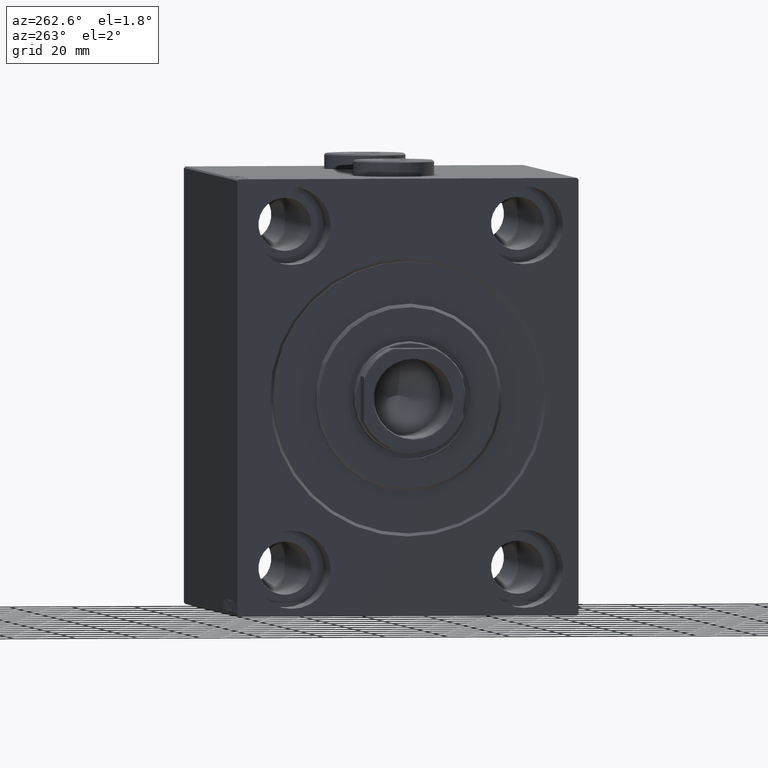
[diagram: clean part render]
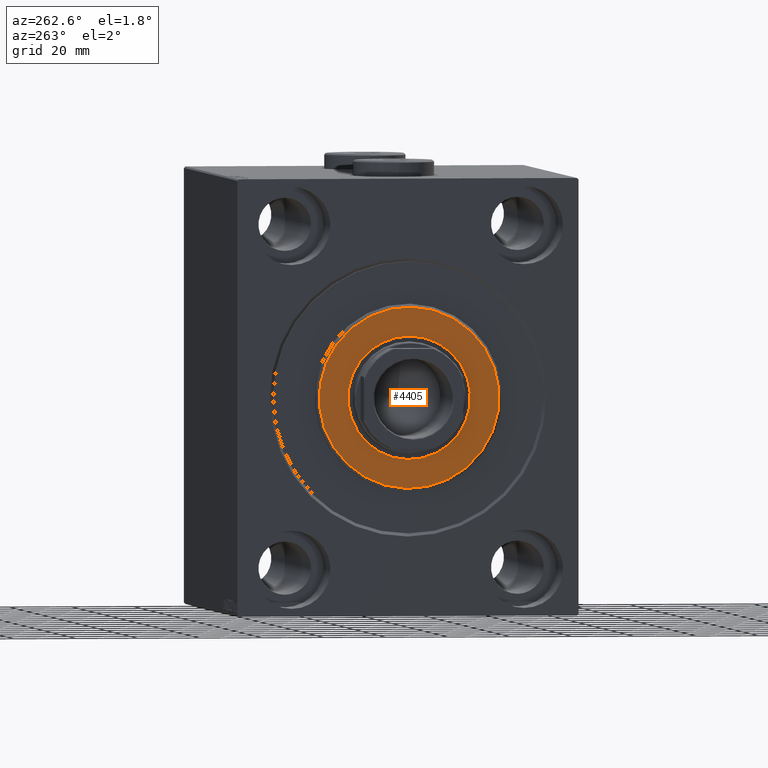
[diagram: same view with one face highlighted and labeled with its STEP entity id]
A machine part, auxiliary view. The second image highlights one B-rep face of the part: STEP entity #4405.
In plain terms, the highlighted planar face has unit normal (-1, 0, 0).
Its self-contained STEP definition (entity closure, byte-faithful):
#506 = DIRECTION ( 'NONE',  ( 1.000000000000000000, -0.000000000000000000, 0.000000000000000000 ) ) ;
#1405 = DIRECTION ( 'NONE',  ( -1.000000000000000000, 0.000000000000000000, -0.000000000000000000 ) ) ;
#1963 = ORIENTED_EDGE ( 'NONE', *, *, #6620, .T. ) ;
#2255 = CARTESIAN_POINT ( 'NONE',  ( 3.000000000000000000, 0.000000000000000000, 19.75000000000000000 ) ) ;
#2344 = CIRCLE ( 'NONE', #15497, 28.99999999999999289 ) ;
#2453 = FACE_BOUND ( 'NONE', #23117, .T. ) ;
#3785 = EDGE_CURVE ( 'NONE', #37875, #45302, #16118, .T. ) ;
#4405 = ADVANCED_FACE ( 'NONE', ( #6548, #2453 ), #40709, .T. ) ;
#6548 = FACE_OUTER_BOUND ( 'NONE', #21306, .T. ) ;
#6620 = EDGE_CURVE ( 'NONE', #45302, #37875, #6654, .T. ) ;
#6654 = CIRCLE ( 'NONE', #8850, 19.75000000000000000 ) ;
#8850 = AXIS2_PLACEMENT_3D ( 'NONE', #34620, #33968, #23889 ) ;
#9221 = EDGE_CURVE ( 'NONE', #27226, #36604, #2344, .T. ) ;
#10673 = CARTESIAN_POINT ( 'NONE',  ( 3.000000000000000000, 0.000000000000000000, 0.000000000000000000 ) ) ;
#11030 = CARTESIAN_POINT ( 'NONE',  ( 3.000000000000000000, 0.000000000000000000, 0.000000000000000000 ) ) ;
#13534 = ORIENTED_EDGE ( 'NONE', *, *, #9221, .T. ) ;
#14775 = CIRCLE ( 'NONE', #35267, 28.99999999999999289 ) ;
#15382 = ORIENTED_EDGE ( 'NONE', *, *, #37633, .T. ) ;
#15497 = AXIS2_PLACEMENT_3D ( 'NONE', #31671, #506, #17925 ) ;
#16118 = CIRCLE ( 'NONE', #27083, 19.75000000000000000 ) ;
#16320 = CARTESIAN_POINT ( 'NONE',  ( 3.000000000000000000, 0.000000000000000000, 28.99999999999999289 ) ) ;
#17925 = DIRECTION ( 'NONE',  ( 0.000000000000000000, 0.000000000000000000, -1.000000000000000000 ) ) ;
#21306 = EDGE_LOOP ( 'NONE', ( #13534, #15382 ) ) ;
#23117 = EDGE_LOOP ( 'NONE', ( #1963, #35875 ) ) ;
#23312 = DIRECTION ( 'NONE',  ( 0.000000000000000000, 0.000000000000000000, -1.000000000000000000 ) ) ;
#23772 = DIRECTION ( 'NONE',  ( 1.000000000000000000, -0.000000000000000000, 0.000000000000000000 ) ) ;
#23889 = DIRECTION ( 'NONE',  ( 0.000000000000000000, 0.000000000000000000, -1.000000000000000000 ) ) ;
#24208 = DIRECTION ( 'NONE',  ( 1.000000000000000000, -0.000000000000000000, 0.000000000000000000 ) ) ;
#24436 = DIRECTION ( 'NONE',  ( 0.000000000000000000, 0.000000000000000000, -1.000000000000000000 ) ) ;
#26281 = CARTESIAN_POINT ( 'NONE',  ( 3.000000000000000000, 3.612708057484691604E-15, -28.99999999999999289 ) ) ;
#27083 = AXIS2_PLACEMENT_3D ( 'NONE', #11030, #1405, #42422 ) ;
#27226 = VERTEX_POINT ( 'NONE', #16320 ) ;
#31671 = CARTESIAN_POINT ( 'NONE',  ( 3.000000000000000000, 0.000000000000000000, 0.000000000000000000 ) ) ;
#33968 = DIRECTION ( 'NONE',  ( -1.000000000000000000, 0.000000000000000000, -0.000000000000000000 ) ) ;
#34620 = CARTESIAN_POINT ( 'NONE',  ( 3.000000000000000000, 0.000000000000000000, 0.000000000000000000 ) ) ;
#35267 = AXIS2_PLACEMENT_3D ( 'NONE', #10673, #24208, #24436 ) ;
#35875 = ORIENTED_EDGE ( 'NONE', *, *, #3785, .T. ) ;
#36604 = VERTEX_POINT ( 'NONE', #26281 ) ;
#37633 = EDGE_CURVE ( 'NONE', #36604, #27226, #14775, .T. ) ;
#37875 = VERTEX_POINT ( 'NONE', #38343 ) ;
#38343 = CARTESIAN_POINT ( 'NONE',  ( 3.000000000000000000, 2.418677428316022331E-15, -19.75000000000000000 ) ) ;
#39534 = AXIS2_PLACEMENT_3D ( 'NONE', #44156, #23772, #23312 ) ;
#40709 = PLANE ( 'NONE',  #39534 ) ;
#42422 = DIRECTION ( 'NONE',  ( 0.000000000000000000, 0.000000000000000000, -1.000000000000000000 ) ) ;
#44156 = CARTESIAN_POINT ( 'NONE',  ( 3.000000000000000000, 0.000000000000000000, 0.000000000000000000 ) ) ;
#45302 = VERTEX_POINT ( 'NONE', #2255 ) ;